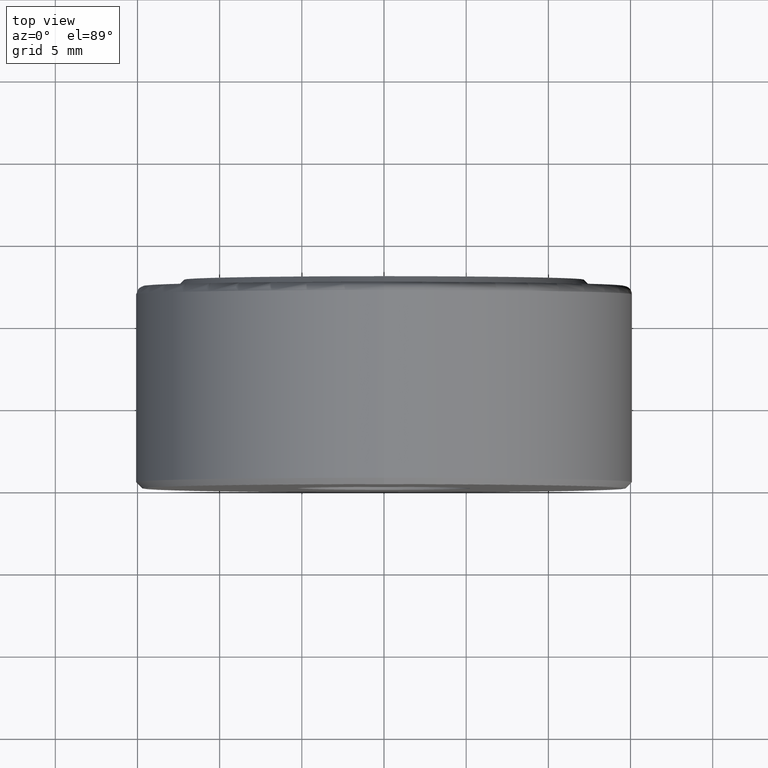
[diagram: clean part render]
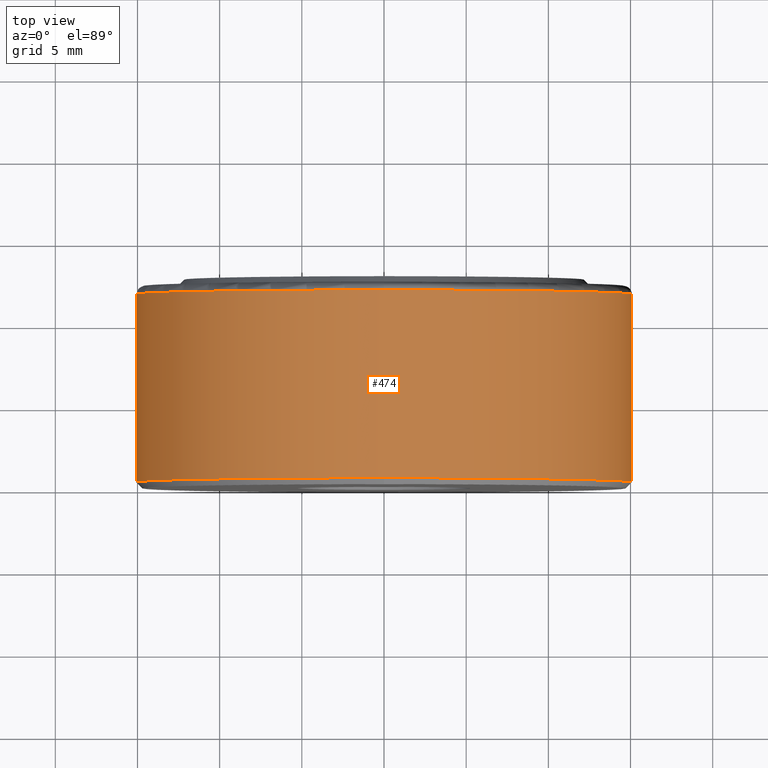
[diagram: same view with one face highlighted and labeled with its STEP entity id]
A machine part, top view. The second image highlights one B-rep face of the part: STEP entity #474.
In plain terms, the highlighted cylindrical surface (bore or boss wall) has radius 15.0812 mm, axis along (-0, 1, -0).
Its self-contained STEP definition (entity closure, byte-faithful):
#61 = EDGE_CURVE ( 'NONE', #280, #280, #153, .T. ) ;
#63 = ORIENTED_EDGE ( 'NONE', *, *, #279, .T. ) ;
#87 = CYLINDRICAL_SURFACE ( 'NONE', #535, 0.5937500000000000000 ) ;
#92 = DIRECTION ( 'NONE',  ( -0.0000000000000000000, 1.000000000000000000, -0.0000000000000000000 ) ) ;
#104 = CARTESIAN_POINT ( 'NONE',  ( 0.0000000000000000000, 0.4650000000000000800, 0.5937500000000000000 ) ) ;
#109 = CIRCLE ( 'NONE', #510, 0.5937499999999998900 ) ;
#153 = CIRCLE ( 'NONE', #544, 0.5937500000000000000 ) ;
#165 = FACE_OUTER_BOUND ( 'NONE', #315, .T. ) ;
#169 = DIRECTION ( 'NONE',  ( -0.0000000000000000000, 1.000000000000000000, -0.0000000000000000000 ) ) ;
#178 = CARTESIAN_POINT ( 'NONE',  ( 0.0000000000000000000, 0.01499999999999997700, 0.0000000000000000000 ) ) ;
#182 = DIRECTION ( 'NONE',  ( 0.0000000000000000000, 0.0000000000000000000, 1.000000000000000000 ) ) ;
#185 = FACE_OUTER_BOUND ( 'NONE', #484, .T. ) ;
#227 = DIRECTION ( 'NONE',  ( -0.0000000000000000000, 1.000000000000000000, -0.0000000000000000000 ) ) ;
#279 = EDGE_CURVE ( 'NONE', #344, #344, #109, .T. ) ;
#280 = VERTEX_POINT ( 'NONE', #104 ) ;
#315 = EDGE_LOOP ( 'NONE', ( #63 ) ) ;
#323 = CARTESIAN_POINT ( 'NONE',  ( 0.0000000000000000000, 0.0000000000000000000, 0.0000000000000000000 ) ) ;
#331 = DIRECTION ( 'NONE',  ( 0.0000000000000000000, 0.0000000000000000000, 1.000000000000000000 ) ) ;
#344 = VERTEX_POINT ( 'NONE', #424 ) ;
#399 = CARTESIAN_POINT ( 'NONE',  ( 0.0000000000000000000, 0.4650000000000000800, 0.0000000000000000000 ) ) ;
#424 = CARTESIAN_POINT ( 'NONE',  ( 0.0000000000000000000, 0.01499999999999997700, 0.5937499999999998900 ) ) ;
#472 = ORIENTED_EDGE ( 'NONE', *, *, #61, .F. ) ;
#474 = ADVANCED_FACE ( 'NONE', ( #185, #165 ), #87, .T. ) ;
#484 = EDGE_LOOP ( 'NONE', ( #472 ) ) ;
#510 = AXIS2_PLACEMENT_3D ( 'NONE', #178, #227, #182 ) ;
#535 = AXIS2_PLACEMENT_3D ( 'NONE', #323, #92, #331 ) ;
#544 = AXIS2_PLACEMENT_3D ( 'NONE', #399, #169, #582 ) ;
#582 = DIRECTION ( 'NONE',  ( 0.0000000000000000000, 0.0000000000000000000, 1.000000000000000000 ) ) ;